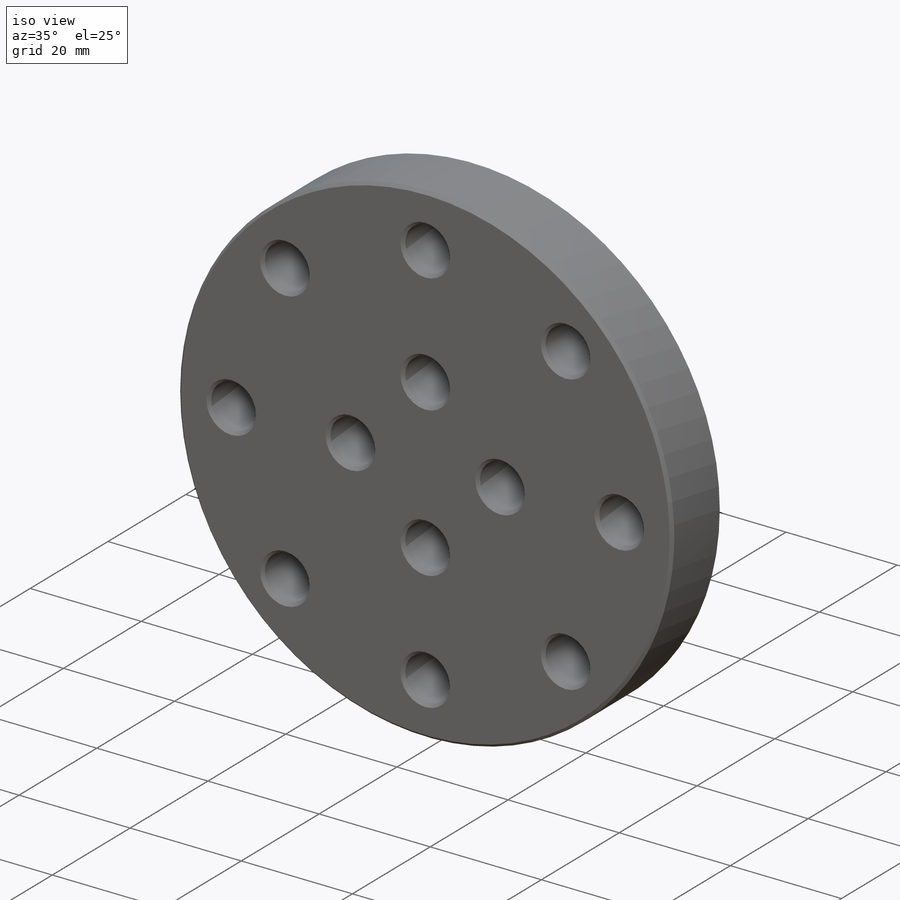
[diagram: iso view]
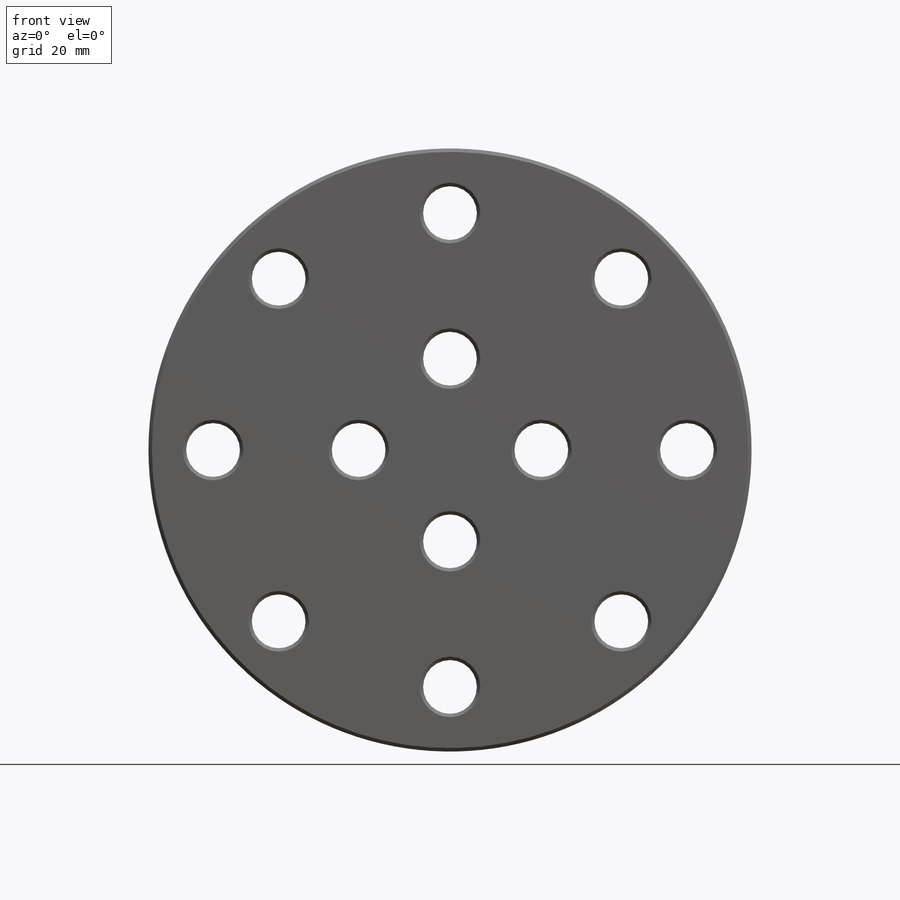
[diagram: front view]
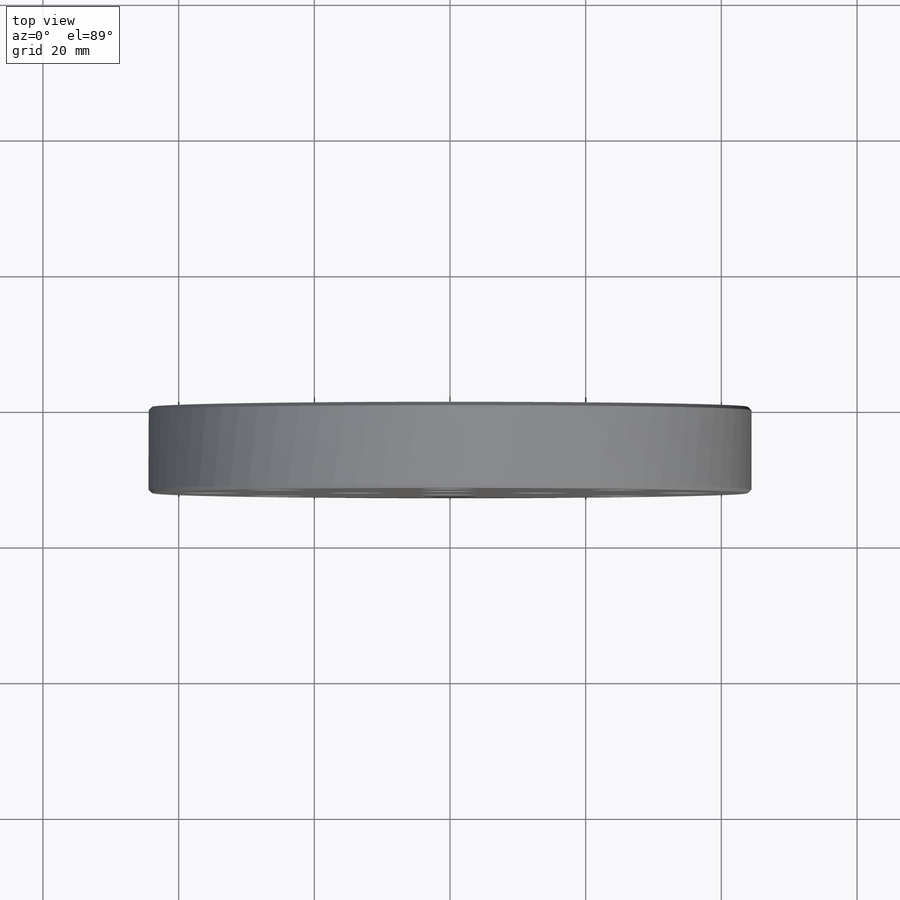
[diagram: top view]
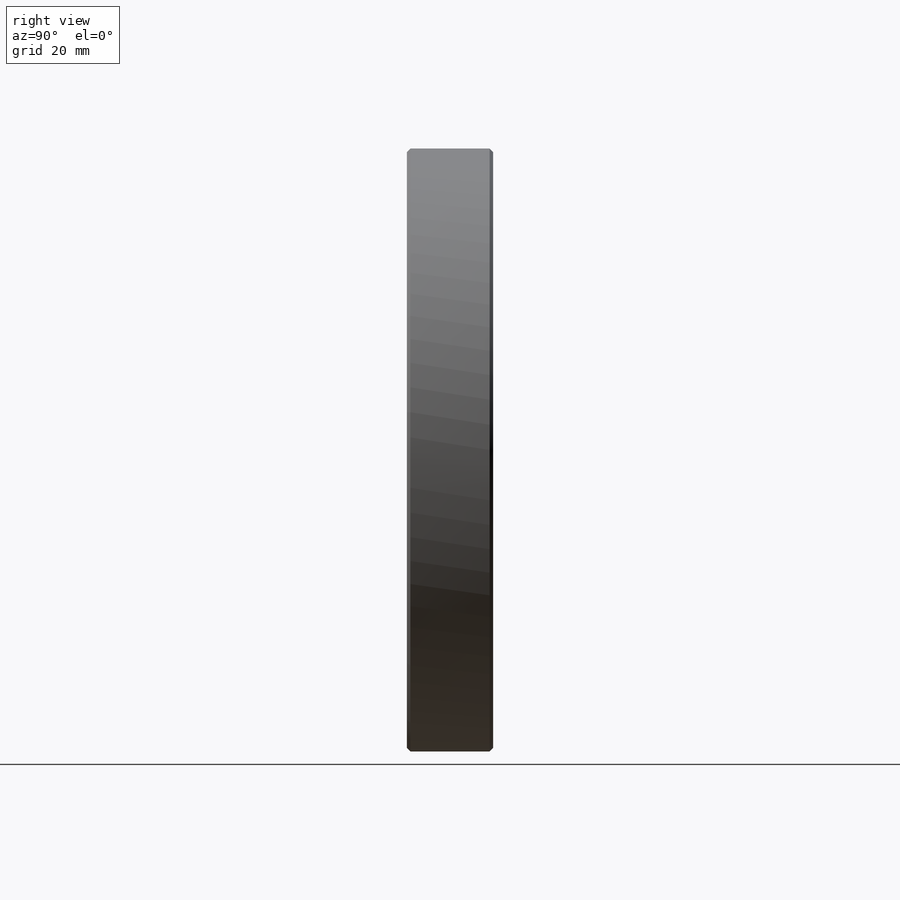
[diagram: right view]
SOLIDWORKS PART (.sldprt)
format: sldprt  version: not decoded by parser v0  size: 367,616 bytes
history: native  units: mm
features: thread x12, sketch x5, cut_extrude x4, chamfer x3, pattern_circular x2, material x1, extrude x1 (+13 scaffold rows collapsed)
feature tree (41):
  scaffold x13  (default folders/planes/origin — collapsed)
  material  "6061 Alloy"
  sketch  "Sketch1"  dims[D1=~67.957595mm]
  extrude  "Extrude1"  Depth=12.7mm
  sketch  "Sketch2"  dims[D1=7.9248mm D2=7.9248mm D3=7.9248mm D4=7.9248mm D5=26.924mm]
  cut_extrude  "Cut-Extrude3"  [1 undecoded]
  sketch  "Sketch3"  dims[D1=34.925mm]
  cut_extrude  "Cut-Extrude4"  [1 undecoded]
  thread  "Cosmetic Thread6"  Diameter=7.9375mm  [1 undecoded]
  pattern_circular  "CirPattern1"  [2 undecoded]
  thread  "Cosmetic Thread1"  Diameter=7.9375mm  [1 undecoded]
  thread  "Cosmetic Thread2"  Diameter=7.9375mm  [1 undecoded]
  thread  "Cosmetic Thread3"  Diameter=7.9375mm  [1 undecoded]
  thread  "Cosmetic Thread4"  Diameter=7.9375mm  [1 undecoded]
  thread  "Cosmetic Thread5"  Diameter=7.9375mm  [1 undecoded]
  thread  "Cosmetic Thread7"  Diameter=7.9375mm  [1 undecoded]
  thread  "Cosmetic Thread8"  Diameter=7.9375mm  [1 undecoded]
  chamfer  "Chamfer1"  Distance=0.508mm Angle=45deg
  sketch  "Sketch4"  dims[c1.D2=71.4248mm c1.D3=7.9248mm c1.D1=~50.508412mm c2.D1=45.0deg]
  cut_extrude  "Cut-Extrude8"  [1 undecoded]
  thread  "Cosmetic Thread9"  Diameter=7.9375mm  [1 undecoded]
  pattern_circular  "CirPattern3"  [2 undecoded]
  thread  "Cosmetic Thread10"  Diameter=7.9375mm  [1 undecoded]
  thread  "Cosmetic Thread11"  Diameter=7.9375mm  [1 undecoded]
  thread  "Cosmetic Thread12"  Diameter=7.9375mm  [1 undecoded]
  chamfer  "Chamfer2"  Distance=0.508mm Angle=45deg
  chamfer  "Chamfer3"  Distance=0.508mm Angle=45deg
  sketch  "Sketch5"  dims[D1=15.875mm]
  cut_extrude  "Cut-Extrude9"  [1 undecoded]
decode coverage: 21 of 27 modeling features carry decoded parameters
note: ~ marks probable driven/reference dimensions
note: 20 parameter values undecoded
summary: no parameter record found for 4 features
note: suppression state not decoded; provenance and decode notes live in map.json
